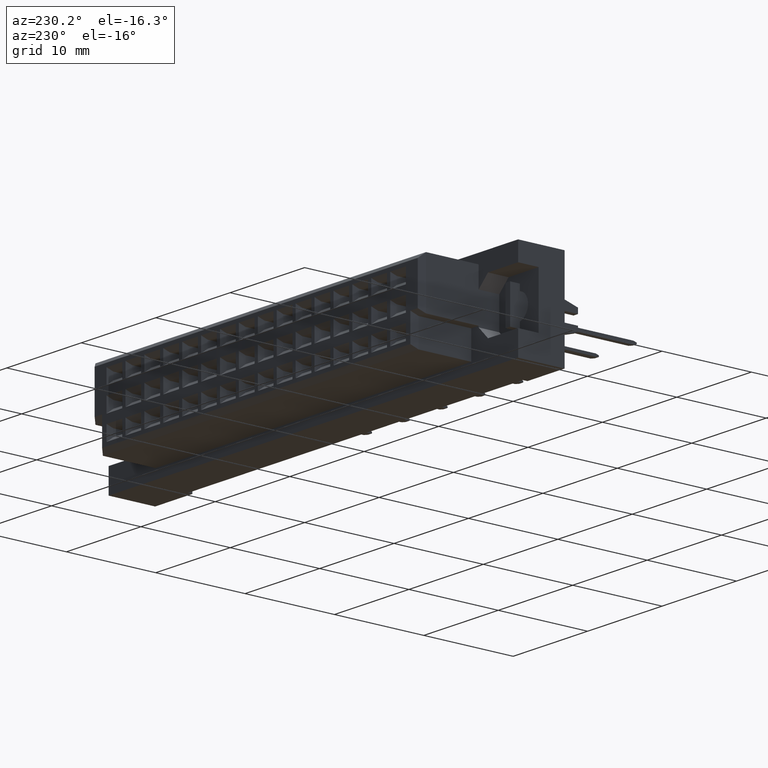
[diagram: clean part render]
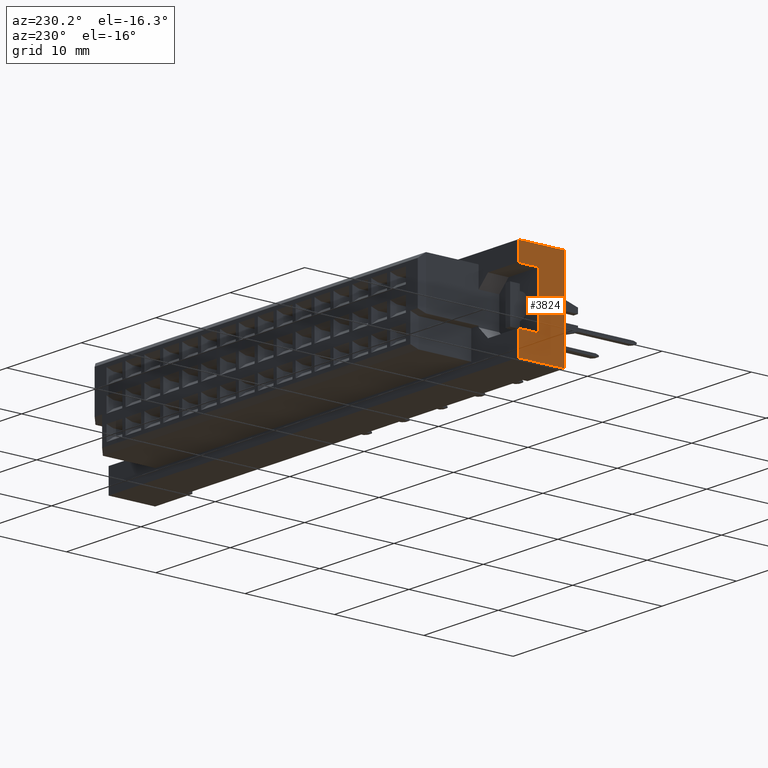
[diagram: same view with one face highlighted and labeled with its STEP entity id]
A machine part, auxiliary view. The second image highlights one B-rep face of the part: STEP entity #3824.
In plain terms, the highlighted planar face has unit normal (-1, 0, 0).
Its self-contained STEP definition (entity closure, byte-faithful):
#534 = VECTOR ( 'NONE', #8679, 1000.000000000000000 ) ;
#1251 = DIRECTION ( 'NONE',  ( 0.0000000000000000000, 1.000000000000000000, 0.0000000000000000000 ) ) ;
#1310 = LINE ( 'NONE', #18814, #15425 ) ;
#1408 = EDGE_LOOP ( 'NONE', ( #1933, #19192, #8822, #17078, #8278, #3605, #11199, #6019 ) ) ;
#1835 = LINE ( 'NONE', #14509, #12301 ) ;
#1933 = ORIENTED_EDGE ( 'NONE', *, *, #14393, .T. ) ;
#2570 = VERTEX_POINT ( 'NONE', #6726 ) ;
#3047 = CARTESIAN_POINT ( 'NONE',  ( -27.50000000000000355, -8.700000000000001066, -2.649999999999994582 ) ) ;
#3605 = ORIENTED_EDGE ( 'NONE', *, *, #8154, .F. ) ;
#3697 = DIRECTION ( 'NONE',  ( -1.000000000000000000, 0.0000000000000000000, 0.0000000000000000000 ) ) ;
#3824 = ADVANCED_FACE ( 'NONE', ( #11659 ), #16064, .T. ) ;
#4062 = VERTEX_POINT ( 'NONE', #10796 ) ;
#4143 = CARTESIAN_POINT ( 'NONE',  ( -27.50000000000000355, -6.400000000000001243, -5.299999999999999822 ) ) ;
#4695 = LINE ( 'NONE', #20403, #15784 ) ;
#4729 = LINE ( 'NONE', #3047, #14898 ) ;
#4877 = DIRECTION ( 'NONE',  ( 0.0000000000000000000, 0.0000000000000000000, 1.000000000000000000 ) ) ;
#4893 = CARTESIAN_POINT ( 'NONE',  ( -27.50000000000000355, -6.400000000000001243, 5.299999999999999822 ) ) ;
#5025 = DIRECTION ( 'NONE',  ( -0.0000000000000000000, 1.000000000000000000, 6.123031769111886291E-17 ) ) ;
#5267 = CARTESIAN_POINT ( 'NONE',  ( -27.50000000000000355, -11.59999999999999964, -5.299999999999999822 ) ) ;
#5813 = LINE ( 'NONE', #4143, #6329 ) ;
#5952 = EDGE_CURVE ( 'NONE', #15813, #7996, #8880, .T. ) ;
#6019 = ORIENTED_EDGE ( 'NONE', *, *, #17095, .F. ) ;
#6329 = VECTOR ( 'NONE', #12408, 1000.000000000000000 ) ;
#6726 = CARTESIAN_POINT ( 'NONE',  ( -27.50000000000000355, -8.700000000000001066, -2.649999999999994582 ) ) ;
#7975 = VERTEX_POINT ( 'NONE', #4893 ) ;
#7996 = VERTEX_POINT ( 'NONE', #19655 ) ;
#8136 = CARTESIAN_POINT ( 'NONE',  ( -27.50000000000000355, -6.400000000000001243, 3.250000000000001776 ) ) ;
#8154 = EDGE_CURVE ( 'NONE', #14737, #7975, #5813, .T. ) ;
#8278 = ORIENTED_EDGE ( 'NONE', *, *, #16518, .T. ) ;
#8679 = DIRECTION ( 'NONE',  ( -0.0000000000000000000, -0.0000000000000000000, 1.000000000000000000 ) ) ;
#8822 = ORIENTED_EDGE ( 'NONE', *, *, #18015, .F. ) ;
#8880 = LINE ( 'NONE', #18419, #534 ) ;
#9086 = VERTEX_POINT ( 'NONE', #17459 ) ;
#9259 = DIRECTION ( 'NONE',  ( 0.0000000000000000000, 1.000000000000000000, 0.0000000000000000000 ) ) ;
#9875 = VECTOR ( 'NONE', #9259, 1000.000000000000000 ) ;
#10094 = DIRECTION ( 'NONE',  ( 0.0000000000000000000, 0.0000000000000000000, 1.000000000000000000 ) ) ;
#10458 = EDGE_CURVE ( 'NONE', #15254, #4062, #1835, .T. ) ;
#10796 = CARTESIAN_POINT ( 'NONE',  ( -27.50000000000000355, -6.400000000000001243, -2.649999999999994582 ) ) ;
#11199 = ORIENTED_EDGE ( 'NONE', *, *, #15077, .F. ) ;
#11518 = LINE ( 'NONE', #16453, #16809 ) ;
#11574 = CARTESIAN_POINT ( 'NONE',  ( -27.50000000000000355, -6.400000000000001243, -5.299999999999999822 ) ) ;
#11659 = FACE_OUTER_BOUND ( 'NONE', #1408, .T. ) ;
#12301 = VECTOR ( 'NONE', #4877, 1000.000000000000000 ) ;
#12408 = DIRECTION ( 'NONE',  ( 0.0000000000000000000, 0.0000000000000000000, 1.000000000000000000 ) ) ;
#12995 = DIRECTION ( 'NONE',  ( 0.0000000000000000000, 0.0000000000000000000, 1.000000000000000000 ) ) ;
#14335 = AXIS2_PLACEMENT_3D ( 'NONE', #18048, #3697, #10094 ) ;
#14393 = EDGE_CURVE ( 'NONE', #2570, #4062, #11518, .T. ) ;
#14509 = CARTESIAN_POINT ( 'NONE',  ( -27.50000000000000355, -6.400000000000001243, -5.299999999999999822 ) ) ;
#14737 = VERTEX_POINT ( 'NONE', #8136 ) ;
#14898 = VECTOR ( 'NONE', #12995, 1000.000000000000000 ) ;
#15077 = EDGE_CURVE ( 'NONE', #9086, #14737, #1310, .T. ) ;
#15254 = VERTEX_POINT ( 'NONE', #11574 ) ;
#15425 = VECTOR ( 'NONE', #17030, 1000.000000000000000 ) ;
#15784 = VECTOR ( 'NONE', #1251, 1000.000000000000000 ) ;
#15813 = VERTEX_POINT ( 'NONE', #5267 ) ;
#16064 = PLANE ( 'NONE',  #14335 ) ;
#16453 = CARTESIAN_POINT ( 'NONE',  ( -27.50000000000000355, -8.700000000000001066, -2.649999999999994582 ) ) ;
#16518 = EDGE_CURVE ( 'NONE', #7996, #7975, #17015, .T. ) ;
#16809 = VECTOR ( 'NONE', #5025, 1000.000000000000000 ) ;
#17015 = LINE ( 'NONE', #17421, #9875 ) ;
#17030 = DIRECTION ( 'NONE',  ( -0.0000000000000000000, 1.000000000000000000, 6.123031769111886291E-17 ) ) ;
#17078 = ORIENTED_EDGE ( 'NONE', *, *, #5952, .T. ) ;
#17095 = EDGE_CURVE ( 'NONE', #2570, #9086, #4729, .T. ) ;
#17421 = CARTESIAN_POINT ( 'NONE',  ( -27.50000000000000355, -11.59999999999999964, 5.299999999999999822 ) ) ;
#17459 = CARTESIAN_POINT ( 'NONE',  ( -27.50000000000000355, -8.700000000000001066, 3.250000000000001776 ) ) ;
#18015 = EDGE_CURVE ( 'NONE', #15813, #15254, #4695, .T. ) ;
#18048 = CARTESIAN_POINT ( 'NONE',  ( -27.50000000000000355, -11.59999999999999964, 5.299999999999999822 ) ) ;
#18419 = CARTESIAN_POINT ( 'NONE',  ( -27.50000000000000355, -11.59999999999999964, 5.299999999999999822 ) ) ;
#18814 = CARTESIAN_POINT ( 'NONE',  ( -27.50000000000000355, -8.700000000000001066, 3.250000000000001776 ) ) ;
#19192 = ORIENTED_EDGE ( 'NONE', *, *, #10458, .F. ) ;
#19655 = CARTESIAN_POINT ( 'NONE',  ( -27.50000000000000355, -11.59999999999999964, 5.299999999999999822 ) ) ;
#20403 = CARTESIAN_POINT ( 'NONE',  ( -27.50000000000000355, -11.59999999999999964, -5.299999999999999822 ) ) ;